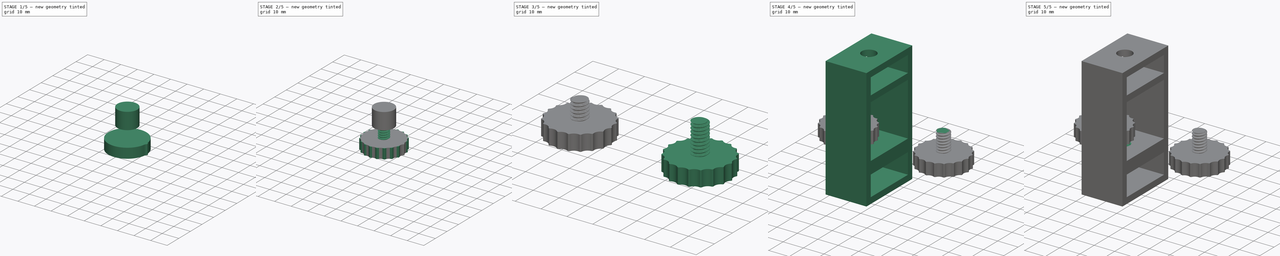
[diagram: build sequence overview — one tinted view per stage of 5, left to right]
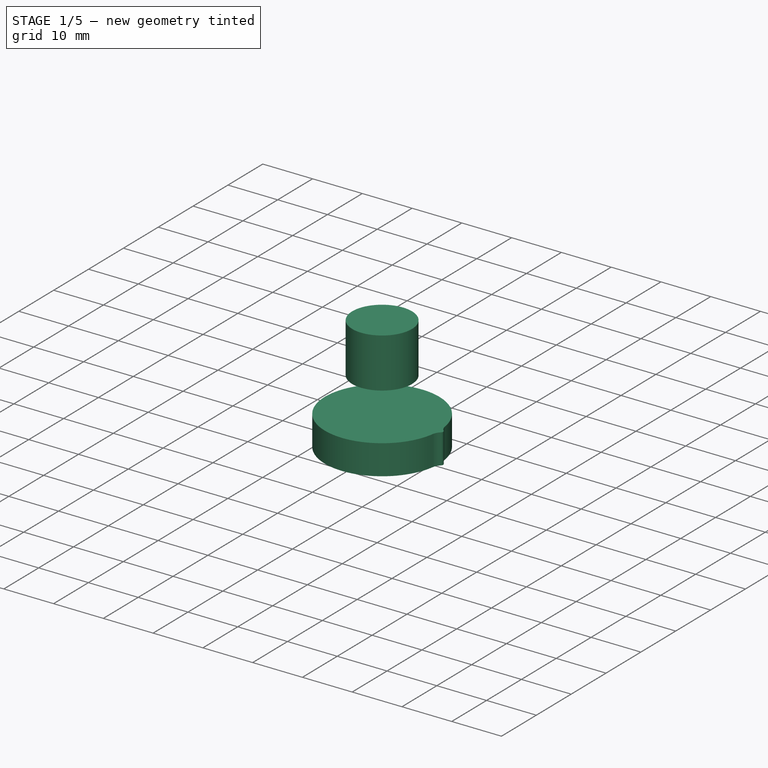
[diagram: stage 1 of 5 — iso view after this stage's code; geometry added in this stage tinted green]
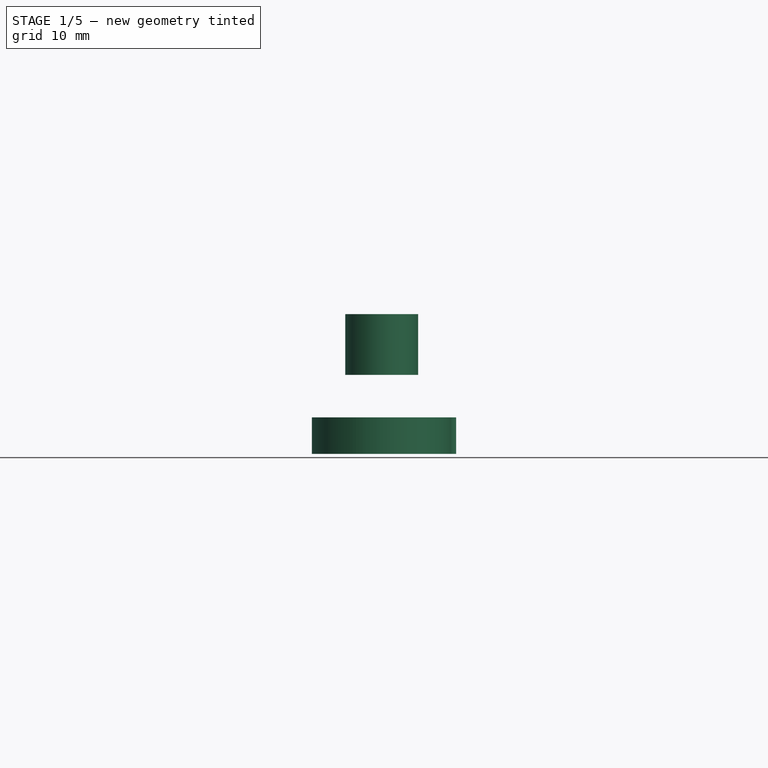
[diagram: stage 1 of 5 — front view after this stage's code; geometry added in this stage tinted green]
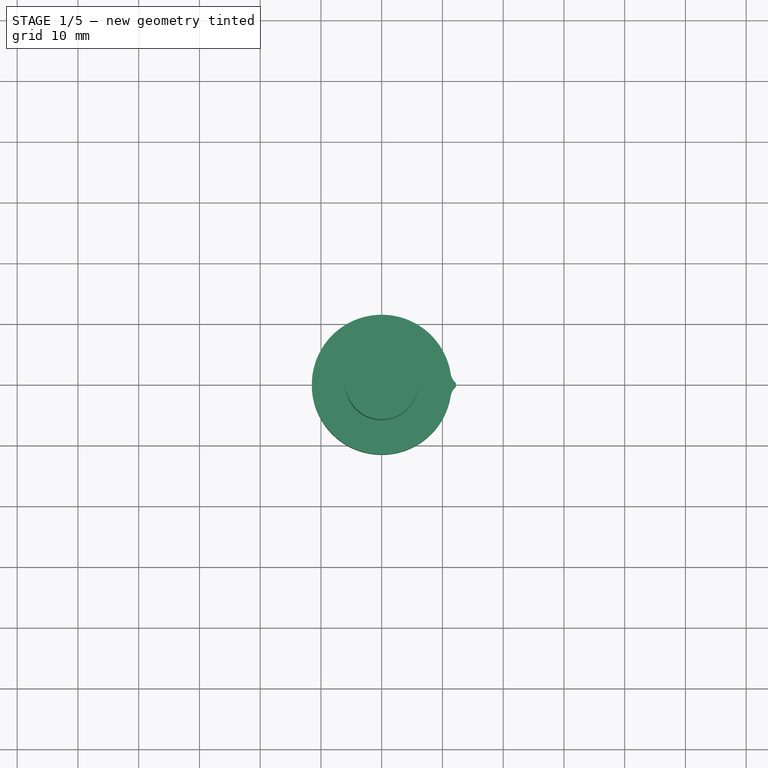
[diagram: stage 1 of 5 — top view after this stage's code; geometry added in this stage tinted green]
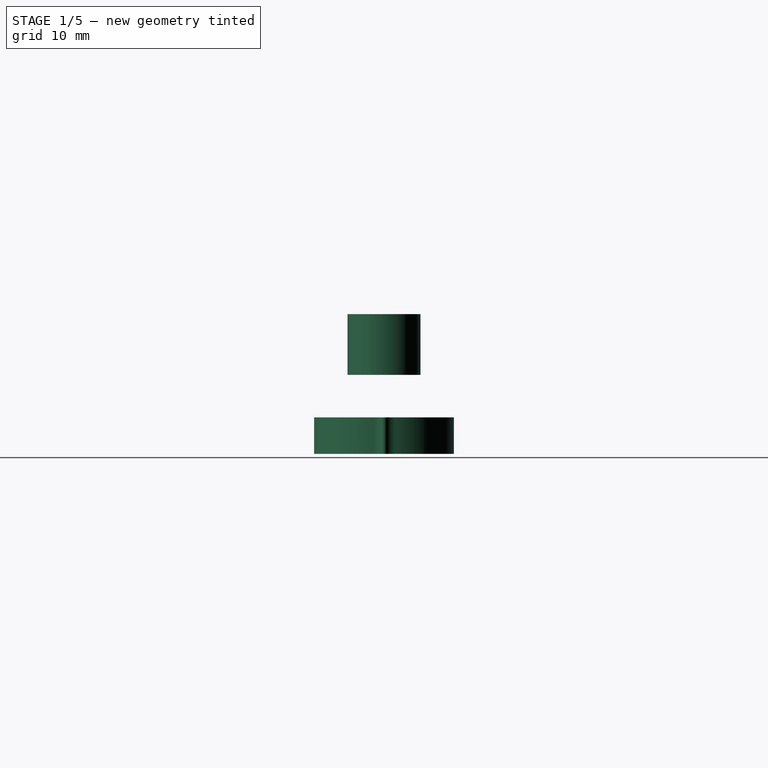
[diagram: stage 1 of 5 — right view after this stage's code; geometry added in this stage tinted green]
FCSTD DOCUMENT  (FreeCAD 0.19R22960 (Git))
Label: lighting arms
License: All rights reserved
LicenseURL: http://en.wikipedia.org/wiki/All_rights_reserved
objects: Part::FeaturePython×5, Sketcher::SketchObject×4, PartDesign::Pad×3, Part::Cut×3, PartDesign::Plane×2, PartDesign::Body×2, Part::Part2DObjectPython×1, Part::Helix×1, Part::Sweep×1, PartDesign::Pocket×1, Part::Box×1, PartDesign::PolarPattern×1, Part::MultiFuse×1, Part::Cylinder×1
note: 31 computed .brp shape members not serialized (recipe doc carries the construction recipe); baked Part::Feature solids carry a one-line shape summary decoded from their .brp

FEATURE [Sketcher::SketchObject] Sketch003
  MapMode = 5
  Support = -> [XY_Plane002]
  sketch-geometry (1):
    g0: Circle CenterX=0 CenterY=0 CenterZ=0 NormalX=0 NormalY=0 NormalZ=1 AngleXU=0 Radius=11.5
  constraints (2):
    c: Coincident(g0,g-1)
    c: Radius(g0) = 11.5
FEATURE [PartDesign::Pad] Pad001
  Direction = (1,1,1)
  Length = 6
  Length2 = 100
  Profile = -> Sketch003
  Refine = true
  Type = 0
FEATURE [PartDesign::Plane] DatumPlane001
  Length = 60
  MapMode = 5
  Placement = pos=(0,0,6) rot=(0,0,1;0rad)
  ResizeMode = 0
  Support = -> [Pad001]
  Width = 60
FEATURE [Sketcher::SketchObject] Sketch004
  ExternalGeometry = -> [Pad001]
  MapMode = 5
  Placement = pos=(0,0,6) rot=(0,0,1;0rad)
  Support = -> [DatumPlane001]
  expr: Constraints[5] = 360 / 20
  sketch-geometry (6):
    g0: LineSegment [constr] StartX=0 StartY=0 StartZ=0 EndX=11.3584 EndY=1.799 EndZ=0
    g1: LineSegment [constr] StartX=0 StartY=0 StartZ=0 EndX=11.3584 EndY=-1.799 EndZ=0
    g2: ArcOfCircle CenterX=13.8276 CenterY=2.19007 CenterZ=0 NormalX=0 NormalY=0 NormalZ=1 AngleXU=0 Radius=2.5 StartAngle=3.29867 EndAngle=3.94795
    g3: ArcOfCircle CenterX=13.8276 CenterY=-2.19007 CenterZ=0 NormalX=0 NormalY=0 NormalZ=1 AngleXU=0 Radius=2.5 StartAngle=2.33524 EndAngle=2.98452
    g4: ArcOfCircle CenterX=11.7275 CenterY=0 CenterZ=0 NormalX=0 NormalY=0 NormalZ=1 AngleXU=0 Radius=0.534306 StartAngle=5.47683 EndAngle=7.08954
    g5: LineSegment StartX=11.3584 StartY=1.799 StartZ=0 EndX=11.3584 EndY=-1.799 EndZ=0
  constraints (18):
    c: Coincident(g0,g-1)
    c: PointOnObject(g0,g-3)
    c: Coincident(g1,g-1)
    c: PointOnObject(g1,g-3)
    c: Vertical(g0,g1)
    c: Angle(g1,g0) = 0.314159
    c: Coincident(g2,g0)
    c: Coincident(g3,g1)
    c: Equal(g2,g3)
    c: Tangent(g3,g-3)
    c: Tangent(g-3,g2)
    c: Vertical(g2,g3)
    c: PointOnObject(g4,g-1)
    c: Coincident(g4,g3)
    c: Tangent(g4,g2) = 1.5708
    c: Radius(g3) = 2.5
    c: Coincident(g5,g2)
    c: Coincident(g5,g3)
FEATURE [PartDesign::Pad] Pad002
  BaseFeature = -> Pad001
  Direction = (1,1,1)
  Length = 6
  Length2 = 100
  Profile = -> Sketch004
  Refine = true
  Reversed = true
  Type = 0
FEATURE [Part::Cylinder] Cylinder
  Angle = 360
  AttacherType = Attacher::AttachEngine3D
  Height = 10
  Placement = pos=(0,0,13) rot=(0,0,1;0rad)
  Radius = 6
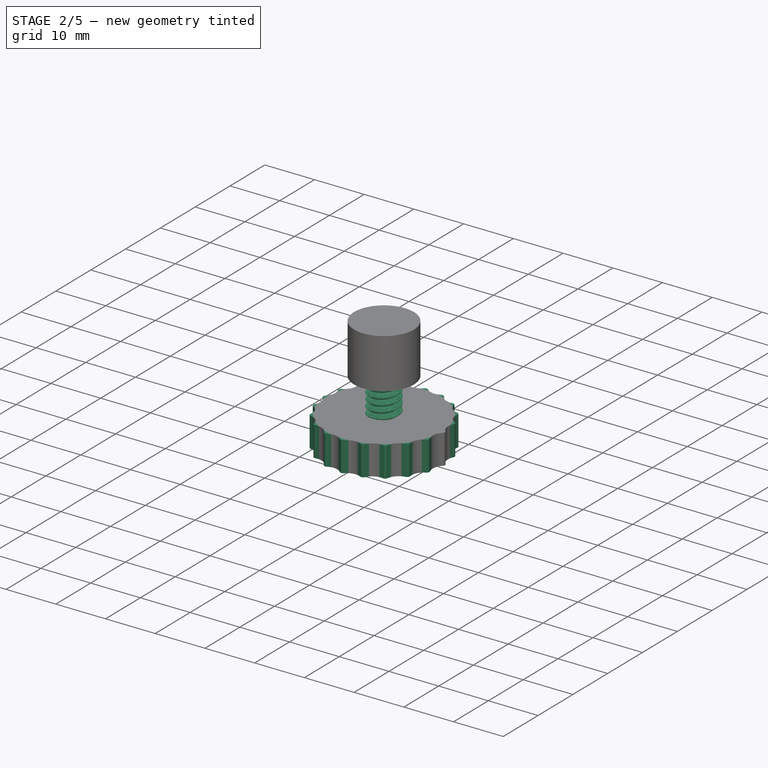
[diagram: stage 2 of 5 — iso view after this stage's code; geometry added in this stage tinted green]
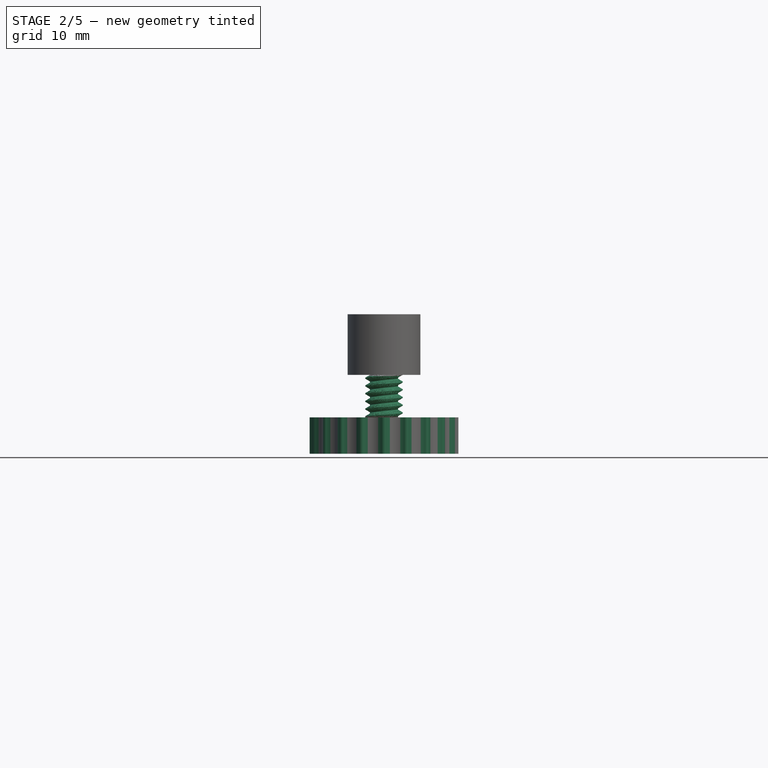
[diagram: stage 2 of 5 — front view after this stage's code; geometry added in this stage tinted green]
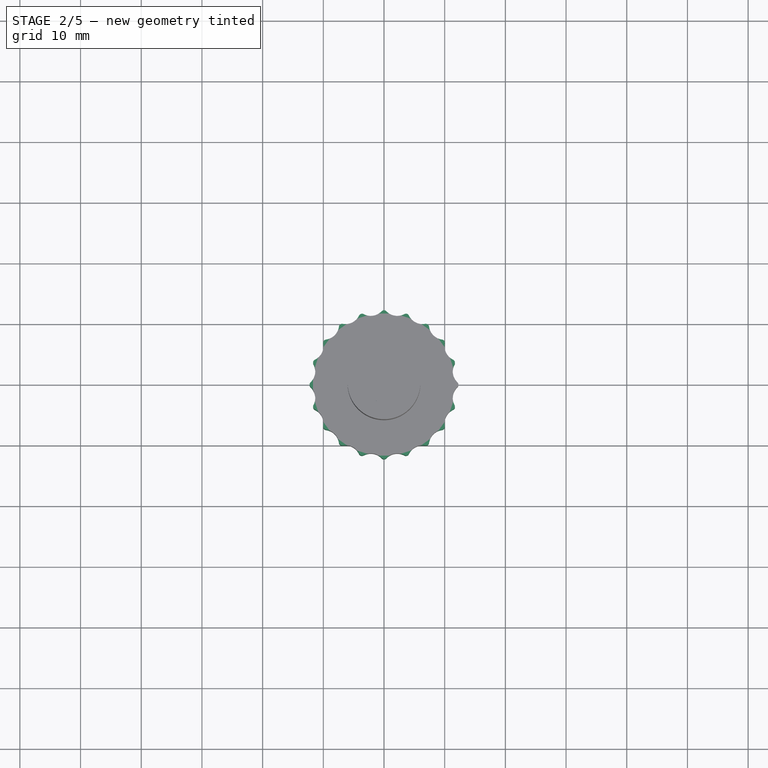
[diagram: stage 2 of 5 — top view after this stage's code; geometry added in this stage tinted green]
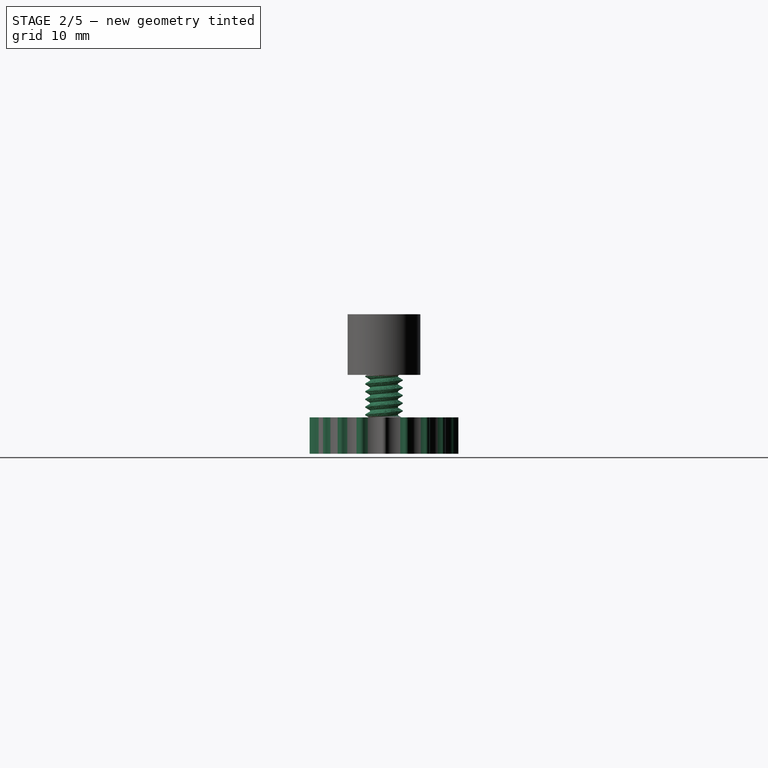
[diagram: stage 2 of 5 — right view after this stage's code; geometry added in this stage tinted green]
FEATURE [Part::Part2DObjectPython] VThreadProfile  # Draft 2D object (typed FeaturePython)
  Area = 22.828
  Closed = true
  Continuity = C3
  Instructions = Expand this with the ... button to view instructions | Sweep this object along a helix of the same pitch to produce your thread. | It is recommended to make the helix in the ThreadProfile workbench. | If there is an active Body the ThreadProfile object will be put into it.,If not it can be dragged and dropped into the body later. | If there is an active Body when the helix is made there will be made a ShapeBinder for it | For internal threads you will need to cut the Sweep object out of a cylinder, or if using Part Design sweep it as a Subtractive Pipe. | Always use Frenet mode | I have provided some presets, but it is possible there could be some errors.  Double check for mission critical applications. | Also, the tolerances might be different from what you wish to have.  I believe the internal minor diameters are all minimum and the external are all maximum.
  InternalOrExternal = 1
  MakeFace = true
  MinorDiameter = 4.79298
  Parameterization = 1
  Pitch = 1.27
  Points = (719) [(2.39341,0.020916,0),(2.39027,0.0417803,0),(2.38706,0.0625944,0),(2.38378,0.0833591,0),(2.38041,0.104075,0),(2.37694,0.124744,0),(2.37339,0.145365,0),+712 more]
  Presets = 213
  Quality = 1
  ThreadCount = 10
  Version = 1.66
  external_data = [-0.00235387,-0.00461052,-0.00677828,-0.00886428,-0.0108747,-0.0128149,-0.0146895,-0.0165028,-0.0182584,-0.0199597,-0.0216095,-0.0232106,-0.0247653,-0.0262759,-0.0277444,-0.0291725,-0.0305621,-0.0319145,-0.0332313,-0.0345138,-0.0357632,+698 more]
  internal_data = [0,0,0,0,0,0,0,0,0,0,0,0,0,0,0,0,0,0,0,0,0,0,0,0,0,0,0,0,0,0,0,0,0,0,0,0,0,0,0,0,0,0,0,0,0,0,0,0,0,0,0,0,0,0,0,0,0,0,0,0,0,0,0,0,0,0,0,0,0,0,0,0,0,0,0,0,0,0,0,0,0,0,0,0,0,0,0,0,0,0,0,0,0,0,0,0,0,0,0,0,0,0,0,0,0,0,0,0,0,0,0,0,0,0,0,0,0,0,0,0,+599 more]
  preset_names = <blob: 3959 chars omitted>
  presets_data = [0,0,0,2.20878,24.1173,24.6888,0.25,0.693,0.729,0.25,0.793,0.829,0.25,0.893,0.929,0.3,1.032,1.075,0.35,1.171,1.221,0.35,1.371,1.421,0.4,1.509,1.567,0.45,1.648,1.713,0.45,1.948,2.013,0.5,2.387,2.459,0.6,2.764,2.85,0.7,3.141,3.242,0.75,3.58,+712 more]
FEATURE [Part::Helix] Helix
  Angle = 0
  AttacherType = Attacher::AttachEngine3D
  Height = 12.7
  LocalCoord = 0
  Pitch = 1.27
  Radius = 1
  Style = 0
  expr: .Placement.Rotation.Axis.z = VThreadProfile.Placement.Rotation.Axis.z
  expr: .Placement.Rotation.Axis.y = VThreadProfile.Placement.Rotation.Axis.y
  expr: .Placement.Rotation.Axis.x = VThreadProfile.Placement.Rotation.Axis.x
  expr: .Placement.Rotation.Angle = VThreadProfile.Placement.Rotation.Angle
  expr: .Placement.Base.z = VThreadProfile.Placement.Base.z
  expr: .Placement.Base.y = VThreadProfile.Placement.Base.y
  expr: .Placement.Base.x = VThreadProfile.Placement.Base.x
  expr: Height = VThreadProfile.ThreadCount * VThreadProfile.Pitch
  expr: Pitch = VThreadProfile.Pitch
FEATURE [Part::Sweep] Sweep
  Frenet = true
  Placement = pos=(0,36,0) rot=(0,0,1;0rad)
  Sections = -> [VThreadProfile]
  Solid = true
  Spine = -> Helix [Edge1,Edge2,Edge3,Edge4,Edge5,Edge6,Edge7,Edge8,Edge9,Edge10]
  Transition = 1
FEATURE [Part::FeaturePython] Clone001  label="Sweep001"  # Draft clone (typed FeaturePython)
  AttacherType = Attacher::AttachEngine3D
  Fuse = false
  Objects = -> [Sweep]
  Placement = pos=(0,0,5) rot=(0,0,1;0rad)
  Scale = (1,1,1)
FEATURE [PartDesign::PolarPattern] PolarPattern
  Angle = 360
  Axis = -> Sketch004 [N_Axis]
  BaseFeature = -> Pad002
  Occurrences = 20
  Originals = -> [Pad002]
  Refine = true
FEATURE [PartDesign::Body] Body002
  Group = -> [Sketch003,Pad001,DatumPlane001,Sketch004,Pad002,PolarPattern]
  Origin = -> Origin002
  Tip = -> PolarPattern
FEATURE [Part::MultiFuse] Fusion  label="Button"
  Refine = true
  Shapes = -> [Clone001,Body002]
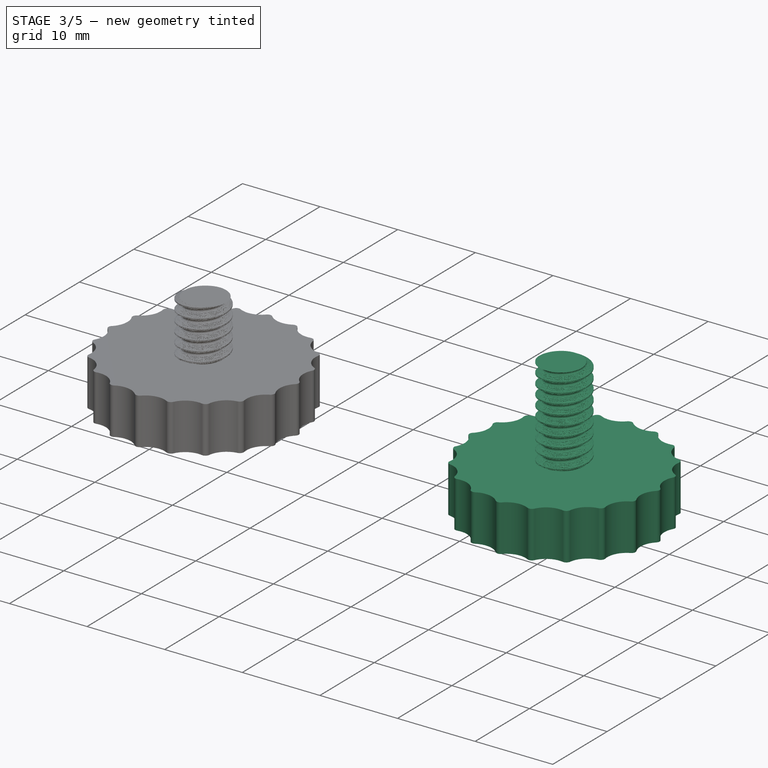
[diagram: stage 3 of 5 — iso view after this stage's code; geometry added in this stage tinted green]
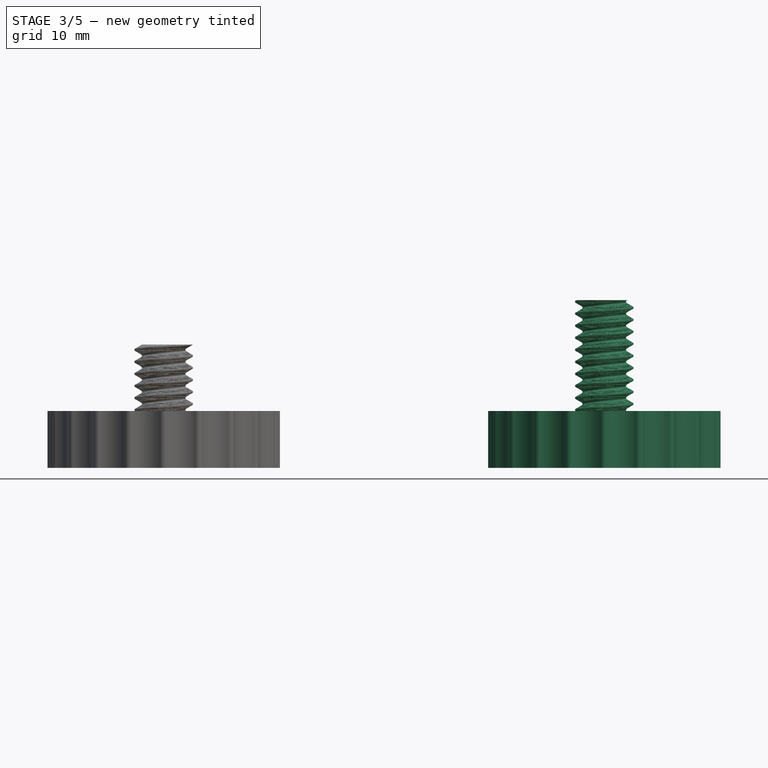
[diagram: stage 3 of 5 — front view after this stage's code; geometry added in this stage tinted green]
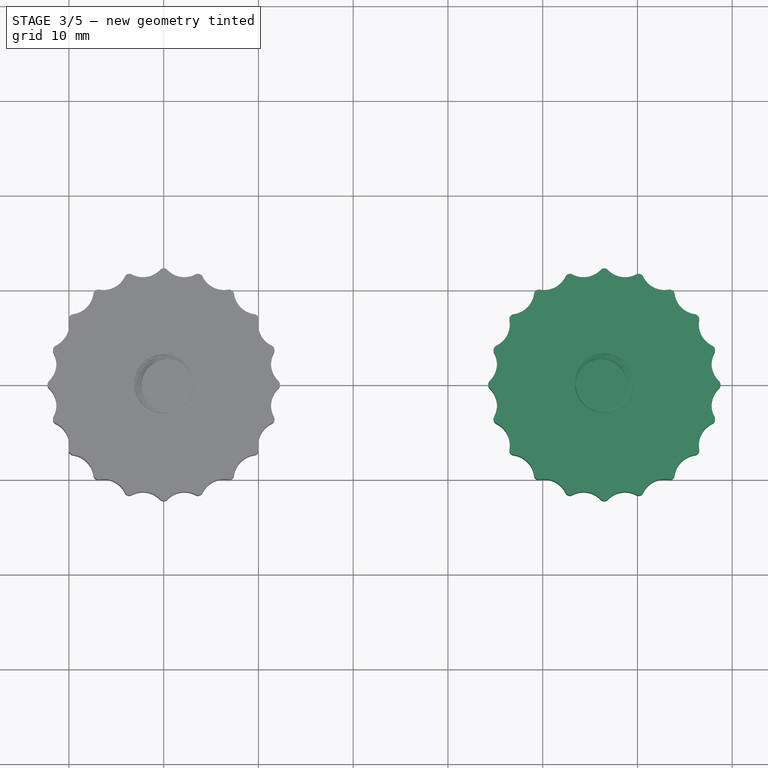
[diagram: stage 3 of 5 — top view after this stage's code; geometry added in this stage tinted green]
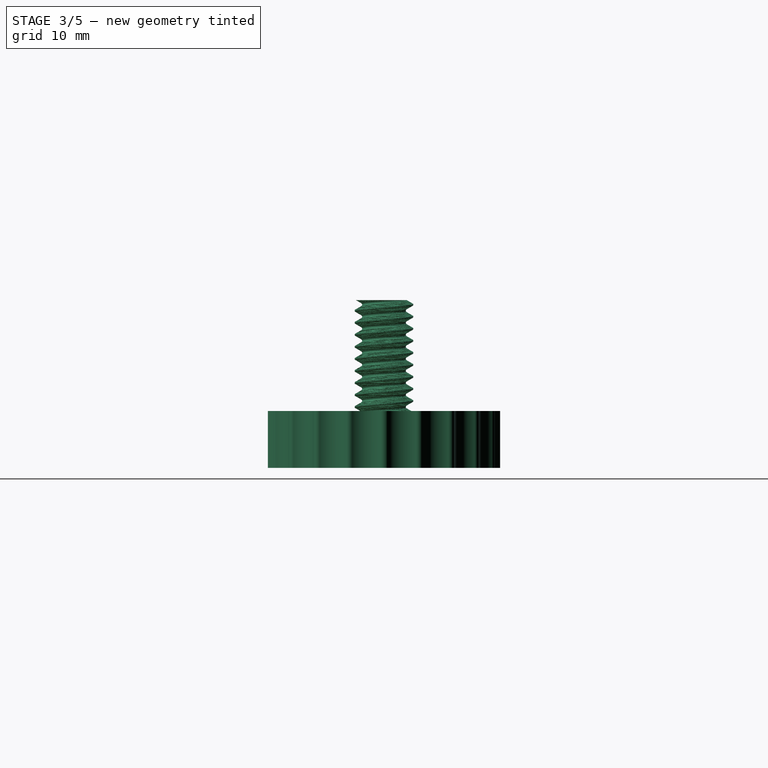
[diagram: stage 3 of 5 — right view after this stage's code; geometry added in this stage tinted green]
FEATURE [Part::FeaturePython] Clone  label="Button001"  # Draft clone (typed FeaturePython)
  AttacherType = Attacher::AttachEngine3D
  Fuse = false
  Objects = -> [Fusion]
  Placement = pos=(46.5,0,0) rot=(0,0,1;0rad)
  Scale = (1,1,1)
FEATURE [Part::FeaturePython] Clone004  label="Button002"  # Draft clone (typed FeaturePython)
  AttacherType = Attacher::AttachEngine3D
  Fuse = false
  Objects = -> [Fusion]
  Scale = (1,1,1)
FEATURE [Part::Cut] Cut002  label="Button-shortest"
  Base = -> Clone004
  Refine = true
  Tool = -> Cylinder
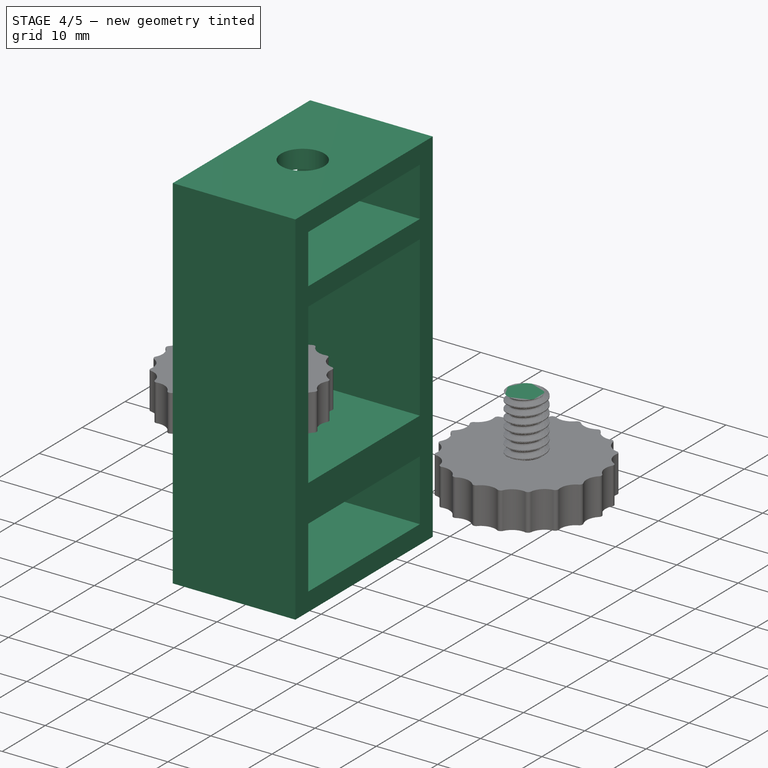
[diagram: stage 4 of 5 — iso view after this stage's code; geometry added in this stage tinted green]
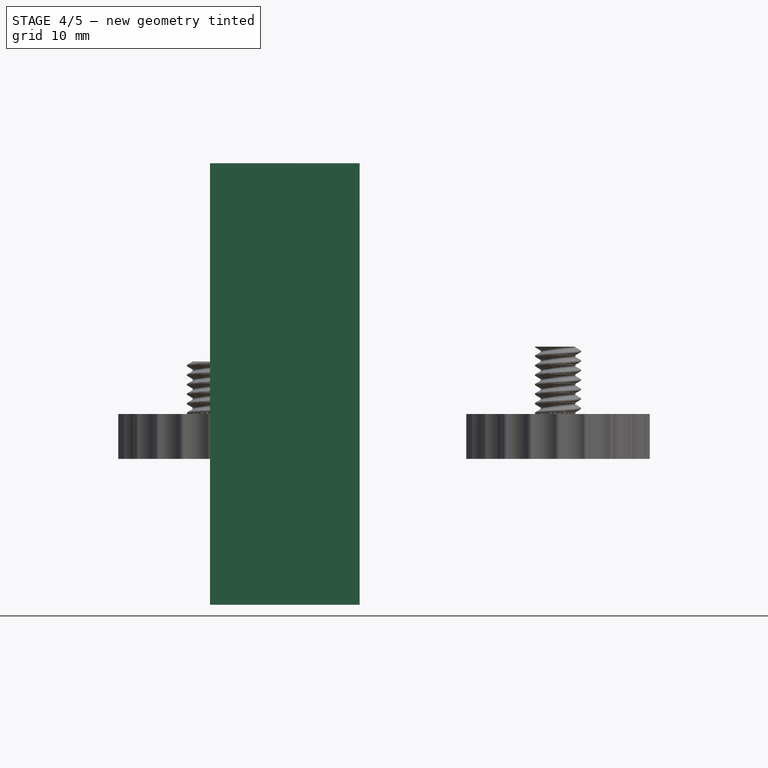
[diagram: stage 4 of 5 — front view after this stage's code; geometry added in this stage tinted green]
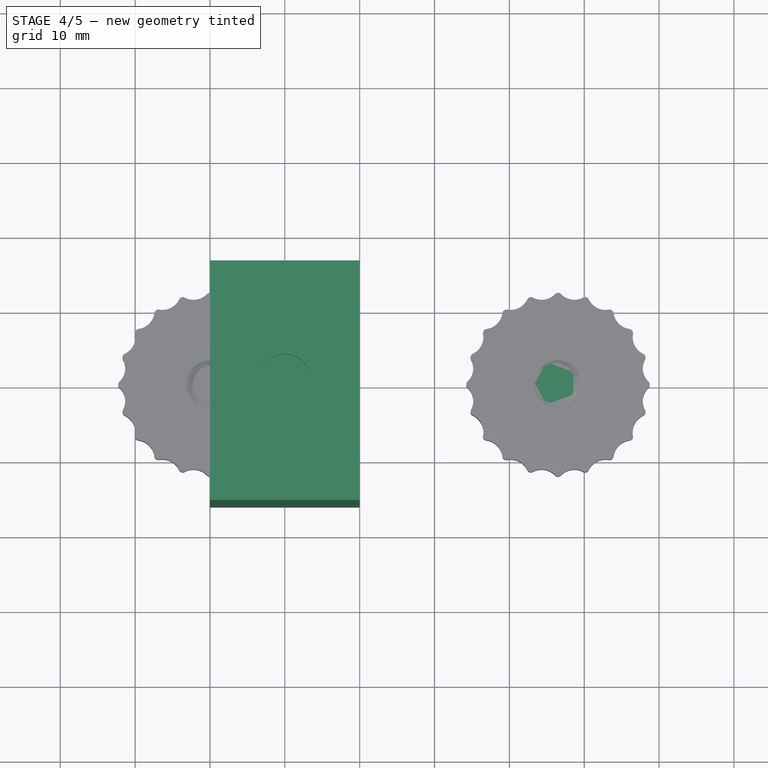
[diagram: stage 4 of 5 — top view after this stage's code; geometry added in this stage tinted green]
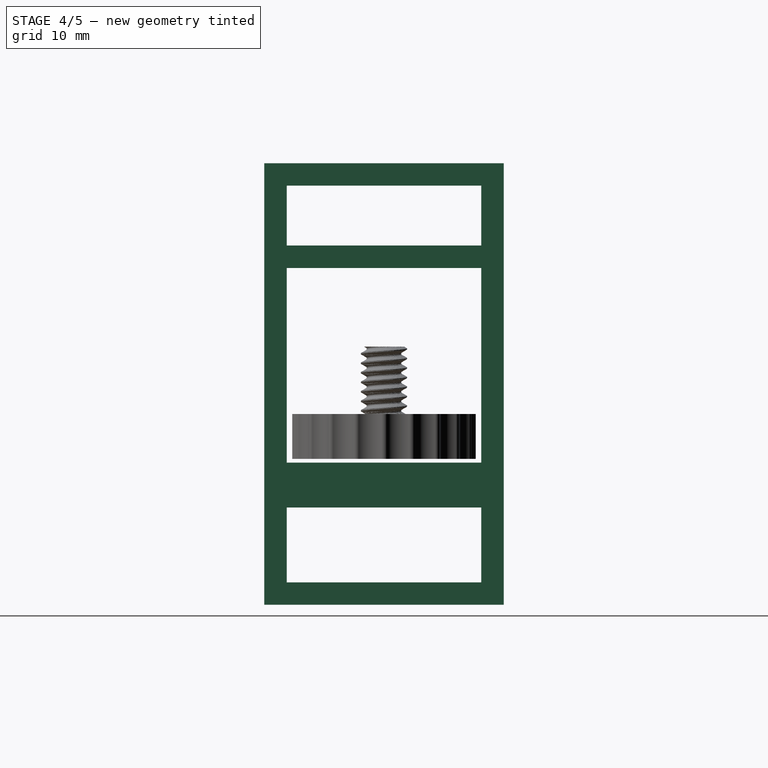
[diagram: stage 4 of 5 — right view after this stage's code; geometry added in this stage tinted green]
FEATURE [Sketcher::SketchObject] Sketch
  MapMode = 5
  Placement = pos=(0,0,0) rot=(0.57735,0.57735,0.57735;2.0944rad)
  Support = -> [YZ_Plane]
  sketch-geometry (31):
    g0: LineSegment [constr] StartX=-12.5 StartY=0 StartZ=0 EndX=12.5 EndY=0 EndZ=0
    g1: LineSegment [constr] StartX=12.5 StartY=0 StartZ=0 EndX=12.5 EndY=25 EndZ=0
    g2: LineSegment [constr] StartX=12.5 StartY=25 StartZ=0 EndX=-12.5 EndY=25 EndZ=0
    g3: LineSegment [constr] StartX=-12.5 StartY=25 StartZ=0 EndX=-12.5 EndY=0 EndZ=0
    g4: LineSegment StartX=-13 StartY=25.5 StartZ=0 EndX=13 EndY=25.5 EndZ=0
    g5: LineSegment StartX=13 StartY=25.5 StartZ=0 EndX=13 EndY=-0.5 EndZ=0
    g6: LineSegment StartX=13 StartY=-0.5 StartZ=0 EndX=-13 EndY=-0.5 EndZ=0
    g7: LineSegment StartX=-13 StartY=-0.5 StartZ=0 EndX=-13 EndY=25.5 EndZ=0
    g8: LineSegment [constr] StartX=12.5 StartY=25 StartZ=0 EndX=13 EndY=25 EndZ=0
    g9: LineSegment [constr] StartX=12.5 StartY=25 StartZ=0 EndX=12.5 EndY=25.5 EndZ=0
    g10: LineSegment [constr] StartX=-12.5 StartY=0 StartZ=0 EndX=-12.5 EndY=-0.5 EndZ=0
    g11: LineSegment [constr] StartX=-12.5 StartY=0 StartZ=0 EndX=-13 EndY=0 EndZ=0
    g12: LineSegment StartX=-13 StartY=28.5 StartZ=0 EndX=13 EndY=28.5 EndZ=0
    g13: LineSegment StartX=16 StartY=39.5 StartZ=0 EndX=16 EndY=-19.5 EndZ=0
    g14: LineSegment StartX=-16 StartY=-19.5 StartZ=0 EndX=-16 EndY=39.5 EndZ=0
    g15: LineSegment [constr] StartX=13 StartY=-0.5 StartZ=0 EndX=16 EndY=-0.5 EndZ=0
    g16: LineSegment [constr] StartX=-13 StartY=25.5 StartZ=0 EndX=-13 EndY=28.5 EndZ=0
    g17: LineSegment [constr] StartX=-13 StartY=25.5 StartZ=0 EndX=-16 EndY=25.5 EndZ=0
    g18: LineSegment StartX=-16 StartY=39.5 StartZ=0 EndX=16 EndY=39.5 EndZ=0
    g19: LineSegment StartX=-13 StartY=28.5 StartZ=0 EndX=-13 EndY=36.5 EndZ=0
    g20: LineSegment StartX=-13 StartY=36.5 StartZ=0 EndX=13 EndY=36.5 EndZ=0
    g21: LineSegment StartX=13 StartY=36.5 StartZ=0 EndX=13 EndY=28.5 EndZ=0
    g22: LineSegment [constr] StartX=-13 StartY=36.5 StartZ=0 EndX=-13 EndY=39.5 EndZ=0
    g23: LineSegment [constr] StartX=13 StartY=-0.5 StartZ=0 EndX=13 EndY=-3.5 EndZ=0
    g24: LineSegment [constr] StartX=13 StartY=-3.5 StartZ=0 EndX=13 EndY=-6.5 EndZ=0
    g25: LineSegment StartX=13 StartY=-6.5 StartZ=0 EndX=-13 EndY=-6.5 EndZ=0
    g26: LineSegment StartX=-13 StartY=-6.5 StartZ=0 EndX=-13 EndY=-16.5 EndZ=0
    g27: LineSegment StartX=-13 StartY=-16.5 StartZ=0 EndX=13 EndY=-16.5 EndZ=0
    g28: LineSegment StartX=13 StartY=-16.5 StartZ=0 EndX=13 EndY=-6.5 EndZ=0
    g29: LineSegment StartX=-16 StartY=-19.5 StartZ=0 EndX=16 EndY=-19.5 EndZ=0
    g30: LineSegment [constr] StartX=13 StartY=-16.5 StartZ=0 EndX=13 EndY=-19.5 EndZ=0
  constraints (90):
    c: Coincident(g0,g1)
    c: Coincident(g1,g2)
    c: Coincident(g2,g3)
    c: Coincident(g3,g0)
    c: Horizontal(g2)
    c: Vertical(g1)
    c: Vertical(g3)
    c: PointOnObject(g0,g-1)
    c: Equal(g2,g1)
    c: DistanceX(g2,g2) = 25
    c: Symmetric(g0,g0,g-2)
    c: Coincident(g4,g5)
    c: Coincident(g5,g6)
    c: Coincident(g6,g7)
    c: Coincident(g7,g4)
    c: Horizontal(g4)
    c: Horizontal(g6)
    c: Vertical(g5)
    c: Vertical(g7)
    c: Coincident(g8,g1)
    c: PointOnObject(g8,g5)
    c: Perpendicular(g8,g5)
    c: Coincident(g9,g1)
    c: PointOnObject(g9,g4)
    c: Perpendicular(g4,g9)
    c: Equal(g9,g8)
    c: DistanceX(g8,g8) = 0.5
    c: Coincident(g10,g0)
    c: PointOnObject(g10,g6)
    c: Coincident(g11,g0)
    c: PointOnObject(g11,g7)
    c: Perpendicular(g7,g11)
    c: Perpendicular(g6,g10)
    c: Equal(g8,g10)
    c: Equal(g10,g11)
    c: Horizontal(g12)
    c: Vertical(g13)
    c: Vertical(g14)
    c: Coincident(g15,g5)
    c: PointOnObject(g15,g13)
    c: Horizontal(g15)
    c: DistanceX(g15,g15) = 3
    c: Coincident(g16,g4)
    c: Vertical(g16)
    c: Coincident(g17,g4)
    c: PointOnObject(g17,g14)
    c: Horizontal(g17)
    c: Equal(g15,g16)
    c: Equal(g16,g17)
    c: Horizontal(g18)
    c: Vertical(g19)
    c: Coincident(g19,g20)
    c: Horizontal(g20)
    c: Coincident(g20,g21)
    c: Vertical(g21)
    c: Vertical(g21,g4)
    c: Coincident(g22,g19)
    c: PointOnObject(g22,g18)
    c: Vertical(g22)
    c: Equal(g22,g17)
    c: Coincident(g12,g16)
    c: Coincident(g12,g21)
    c: Coincident(g13,g18)
    c: Coincident(g14,g18)
    c: Coincident(g12,g19)
    c: DistanceY(g21,g21) = 8
    c: Coincident(g23,g5)
    c: Vertical(g23)
    c: Coincident(g24,g23)
    c: Vertical(g24)
    c: Equal(g15,g23)
    c: Equal(g23,g24)
    c: Coincident(g25,g26)
    c: Coincident(g26,g27)
    c: Coincident(g27,g28)
    c: Coincident(g28,g25)
    c: Horizontal(g25)
    c: Horizontal(g27)
    c: Vertical(g26)
    c: Vertical(g28)
    c: Coincident(g25,g24)
    c: Vertical(g6,g25)
    c: Coincident(g29,g14)
    c: Coincident(g29,g13)
    c: Horizontal(g29)
    c: Coincident(g30,g27)
    c: PointOnObject(g30,g29)
    c: Vertical(g30)
    c: Equal(g30,g24)
    c: DistanceY(g28,g28) = 10
FEATURE [PartDesign::Pad] Pad
  Direction = (1,1,1)
  Length = 20
  Length2 = 100
  Placement = pos=(0,0,0) rot=(0.57735,0.57735,0.57735;2.0944rad)
  Profile = -> Sketch
  Refine = true
  Type = 0
FEATURE [PartDesign::Plane] DatumPlane
  Length = 60
  MapMode = 5
  Placement = pos=(-1.11e-14,1.74e-14,39.5) rot=(0,0,-1;1.5708rad)
  ResizeMode = 0
  Support = -> [Pad]
  Width = 60
FEATURE [Sketcher::SketchObject] Sketch002
  ExternalGeometry = -> [Pad]
  MapMode = 5
  Placement = pos=(-1.11e-14,1.74e-14,39.5) rot=(0,0,-1;1.5708rad)
  Support = -> [DatumPlane]
  sketch-geometry (4):
    g0: LineSegment [constr] StartX=-16 StartY=20 StartZ=0 EndX=16 EndY=-7.1e-15 EndZ=0
    g1: LineSegment [constr] StartX=-16 StartY=-6.6e-15 StartZ=0 EndX=16 EndY=20 EndZ=0
    g2: GeomPoint X=6.2e-15 Y=10 Z=0
    g3: Circle CenterX=6.2e-15 CenterY=10 CenterZ=0 NormalX=0 NormalY=0 NormalZ=1 AngleXU=0 Radius=3.5
  constraints (8):
    c: Coincident(g0,g-3)
    c: Coincident(g0,g-4)
    c: Coincident(g1,g-4)
    c: Coincident(g1,g-3)
    c: PointOnObject(g2,g0)
    c: PointOnObject(g2,g1)
    c: Coincident(g3,g2)
    c: Diameter(g3) = 7
FEATURE [PartDesign::Pocket] Pocket
  BaseFeature = -> Pad
  Length = 5
  Length2 = 100
  Placement = pos=(0,0,0) rot=(0.57735,0.57735,0.57735;2.0944rad)
  Profile = -> Sketch002
  Refine = true
  Type = 2
FEATURE [Part::Box] Box  label="Cube"
  AttacherType = Attacher::AttachEngine3D
  Height = 10
  Length = 10
  Placement = pos=(42,-5,15) rot=(0,0,1;0rad)
  Width = 10
FEATURE [Part::Cut] Cut001  label="Button-short"
  Base = -> Clone
  Refine = true
  Tool = -> Box
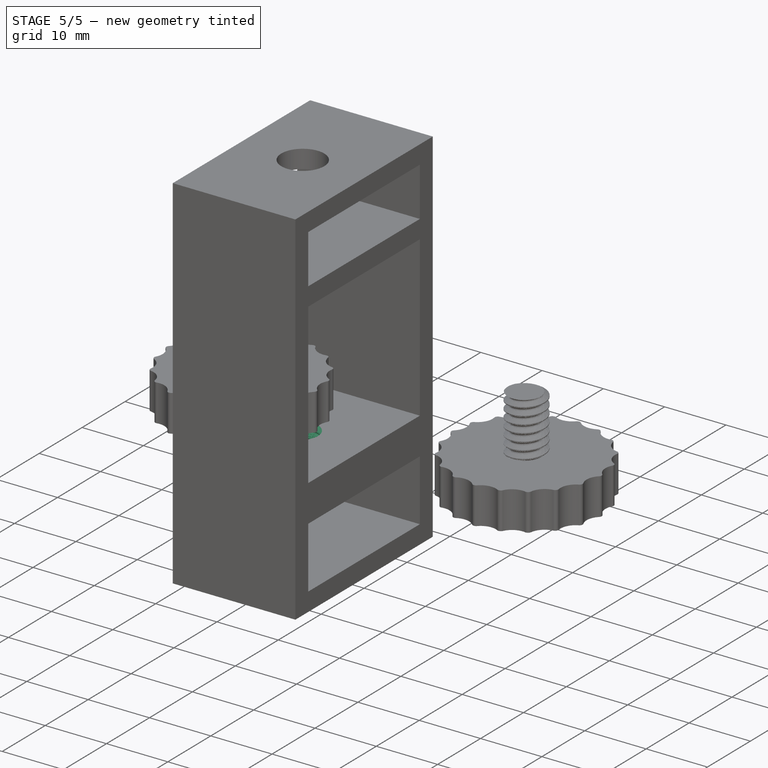
[diagram: stage 5 of 5 — iso view after this stage's code; geometry added in this stage tinted green]
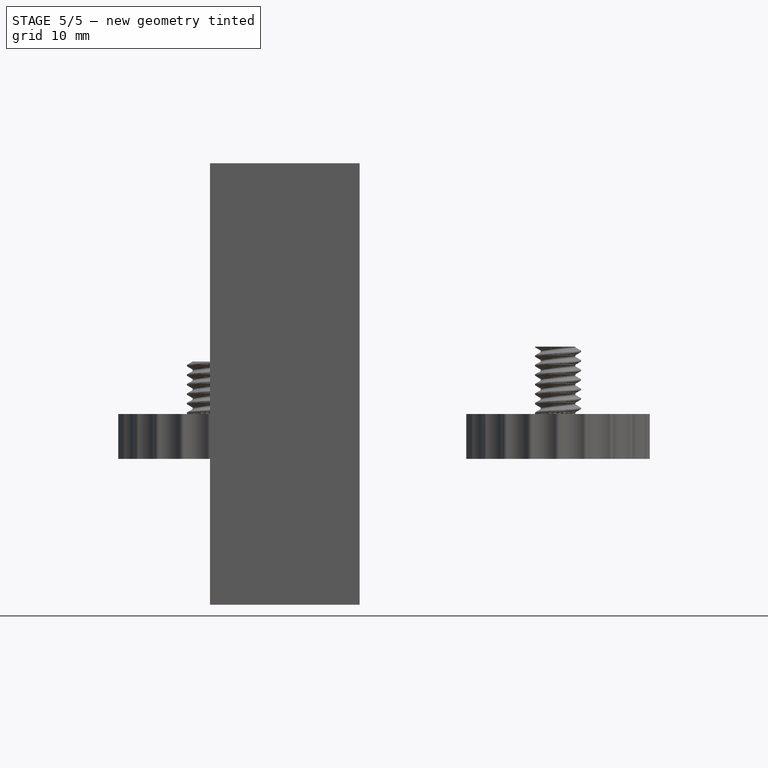
[diagram: stage 5 of 5 — front view after this stage's code; geometry added in this stage tinted green]
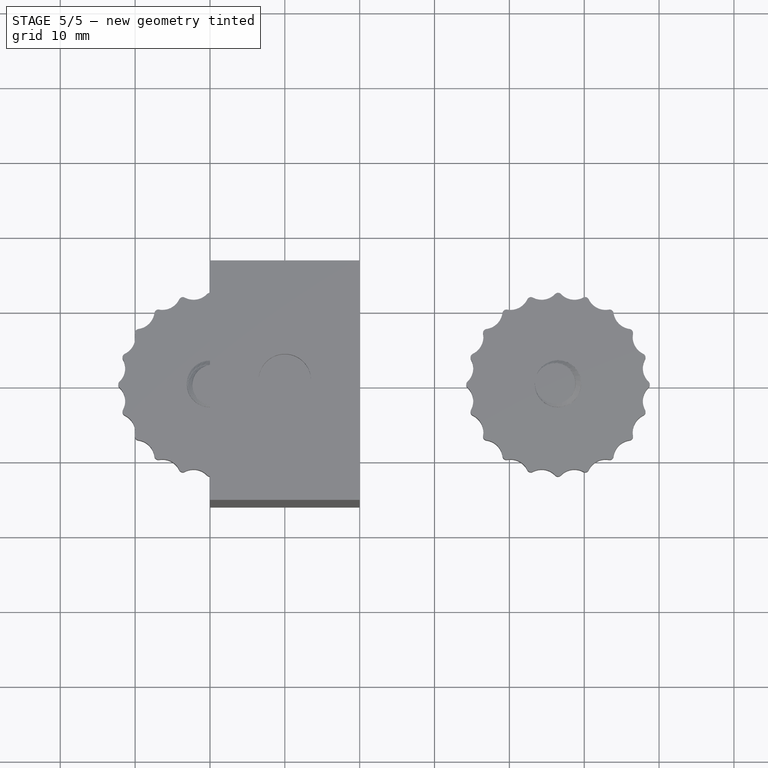
[diagram: stage 5 of 5 — top view after this stage's code; geometry added in this stage tinted green]
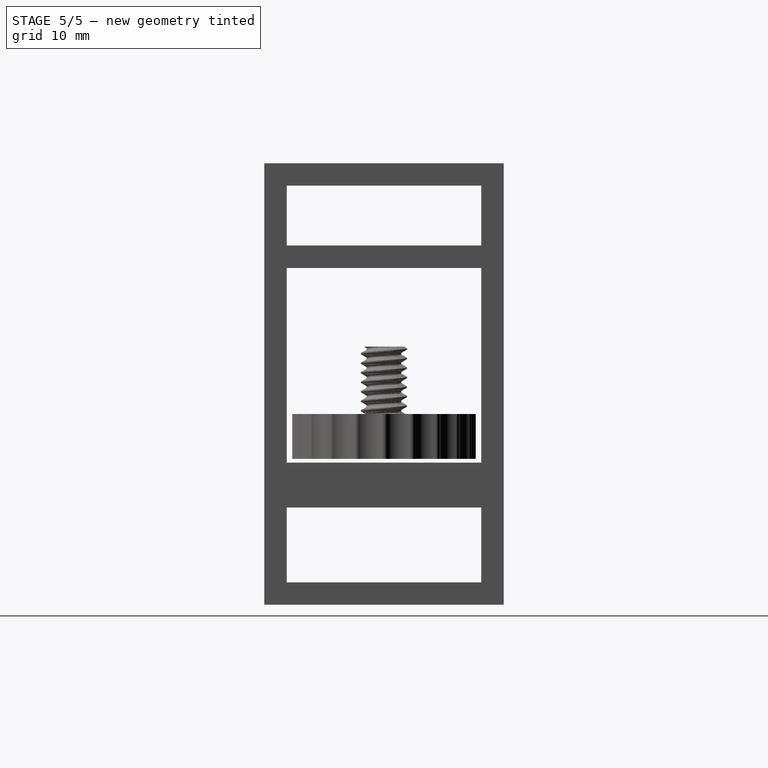
[diagram: stage 5 of 5 — right view after this stage's code; geometry added in this stage tinted green]
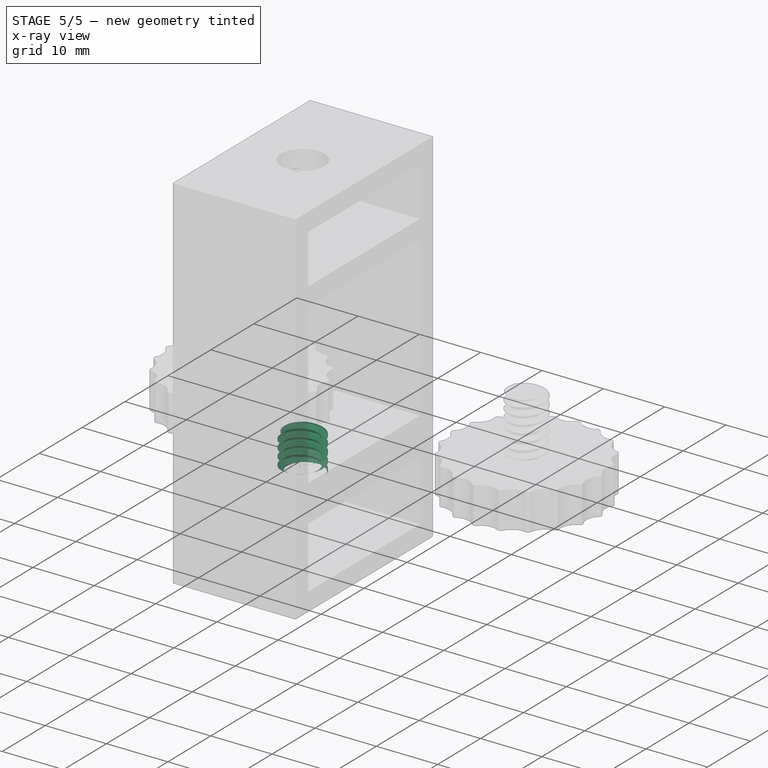
[diagram: stage 5 of 5 — x-ray composite at the iso view; earlier geometry ghosted, this stage's added geometry solid]
FEATURE [Part::FeaturePython] Clone002  label="Sweep002"  # Draft clone (typed FeaturePython)
  AttacherType = Attacher::AttachEngine3D
  Fuse = false
  Objects = -> [Sweep]
  Placement = pos=(19,43,0) rot=(0,0,1;0rad)
  Scale = (1,1,1)
FEATURE [Part::FeaturePython] Clone003  label="Sweep003-larger"  # Draft clone (typed FeaturePython)
  AttacherType = Attacher::AttachEngine3D
  Fuse = false
  Objects = -> [Clone002]
  Placement = pos=(10,0,-8) rot=(0,0,1;0rad)
  Scale = (1.1,1.1,1)
FEATURE [PartDesign::Body] Body
  Group = -> [Sketch,Pad,DatumPlane,Sketch002,Pocket]
  Origin = -> Origin
  Tip = -> Pocket
FEATURE [Part::Cut] Cut
  Base = -> Body
  Refine = true
  Tool = -> Clone003
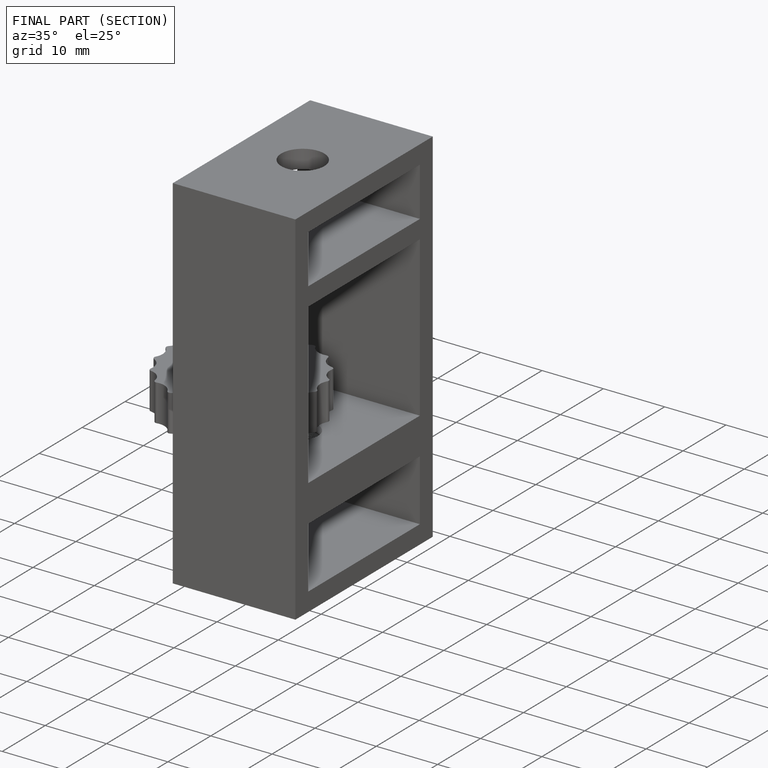
[diagram: finished part — half-section view (interior)]
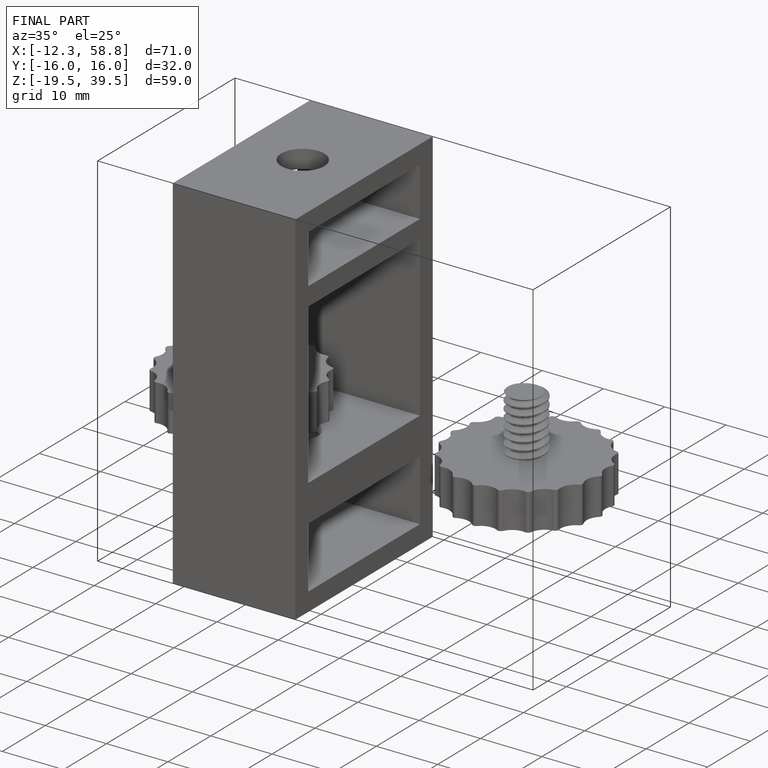
[diagram: finished part — iso view with bounding-box wireframe]
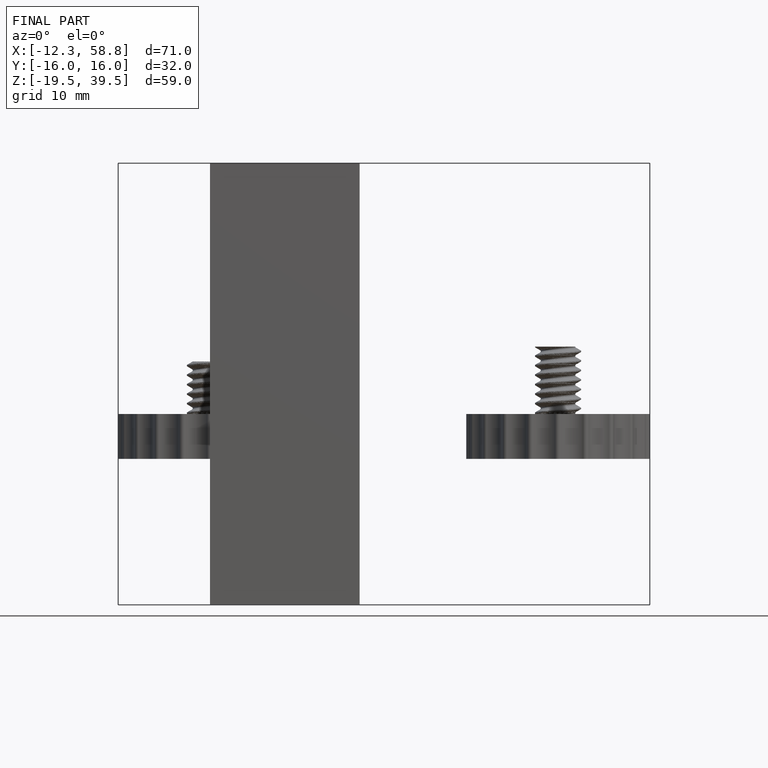
[diagram: finished part — front view with bounding-box wireframe]
